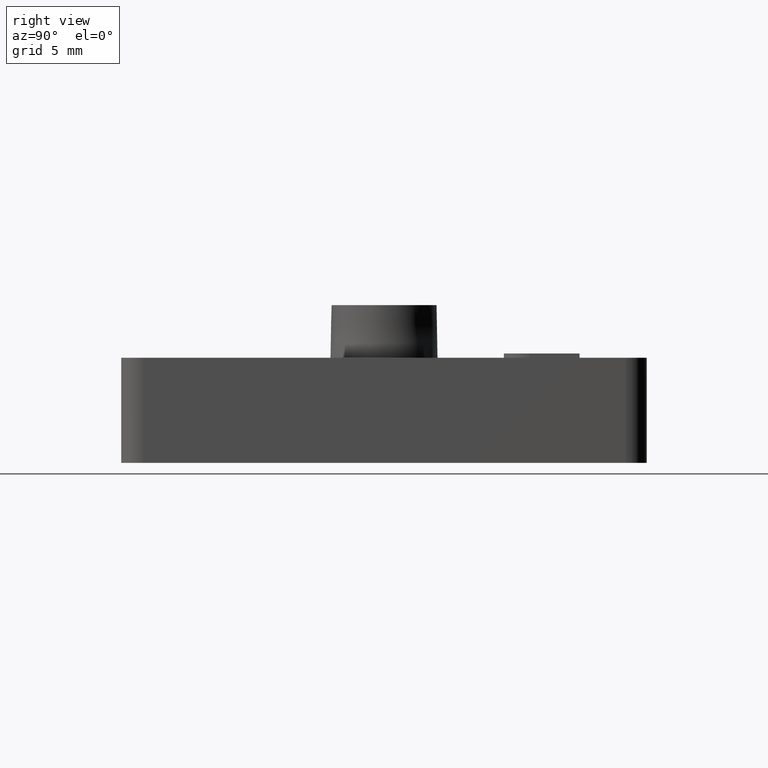
[diagram: clean part render]
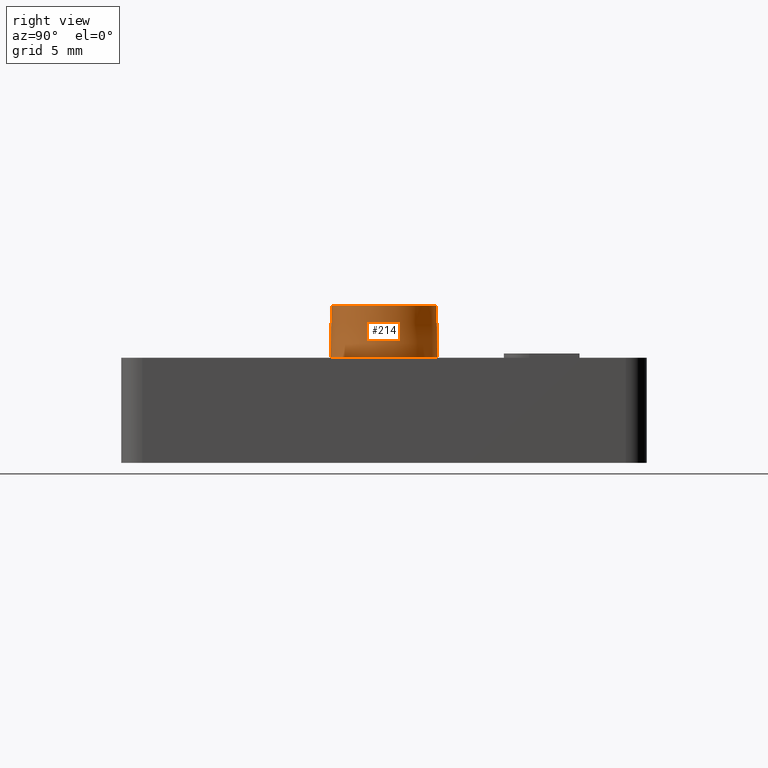
[diagram: same view with one face highlighted and labeled with its STEP entity id]
A machine part, right view. The second image highlights one B-rep face of the part: STEP entity #214.
In plain terms, the highlighted conical surface has half-angle 1 deg.
Its self-contained STEP definition (entity closure, byte-faithful):
#214 = ADVANCED_FACE( '', ( #539, #540 ), #541, .T. );
#539 = FACE_OUTER_BOUND( '', #885, .T. );
#540 = FACE_BOUND( '', #886, .T. );
#541 = CONICAL_SURFACE( '', #887, 2.50000000000000, 0.0174532925199433 );
#885 = EDGE_LOOP( '', ( #2059 ) );
#886 = EDGE_LOOP( '', ( #2060 ) );
#887 = AXIS2_PLACEMENT_3D( '', #2061, #2062, #2063 );
#2059 = ORIENTED_EDGE( '', *, *, #2334, .F. );
#2060 = ORIENTED_EDGE( '', *, *, #2580, .T. );
#2061 = CARTESIAN_POINT( '', ( 6.50000000000000, -0.000165124598848028, 7.50000000000000 ) );
#2062 = DIRECTION( '', ( 0.000000000000000, -6.12303176911189E-017, -1.00000000000000 ) );
#2063 = DIRECTION( '', ( 0.000000000000000, 1.00000000000000, -6.12303176911189E-017 ) );
#2334 = EDGE_CURVE( '', #2858, #2858, #2859, .T. );
#2580 = EDGE_CURVE( '', #3237, #3237, #3238, .T. );
#2858 = VERTEX_POINT( '', #3643 );
#2859 = CIRCLE( '', #3644, 2.54363766232055 );
#3237 = VERTEX_POINT( '', #4264 );
#3238 = CIRCLE( '', #4265, 2.50000000000000 );
#3643 = CARTESIAN_POINT( '', ( 6.50000000000000, 2.54347253772170, 5.00000000000000 ) );
#3644 = AXIS2_PLACEMENT_3D( '', #4472, #4473, #4474 );
#4264 = CARTESIAN_POINT( '', ( 9.00000000000001, -0.000165124598848028, 7.50000000000000 ) );
#4265 = AXIS2_PLACEMENT_3D( '', #4726, #4727, #4728 );
#4472 = CARTESIAN_POINT( '', ( 6.50000000000000, -0.000165124598848181, 5.00000000000000 ) );
#4473 = DIRECTION( '', ( 0.000000000000000, -6.12303176911189E-017, -1.00000000000000 ) );
#4474 = DIRECTION( '', ( 0.000000000000000, 1.00000000000000, -6.12303176911189E-017 ) );
#4726 = CARTESIAN_POINT( '', ( 6.50000000000000, -0.000165124598848028, 7.50000000000000 ) );
#4727 = DIRECTION( '', ( 0.000000000000000, -6.12303176911189E-017, -1.00000000000000 ) );
#4728 = DIRECTION( '', ( 1.00000000000000, 0.000000000000000, 0.000000000000000 ) );